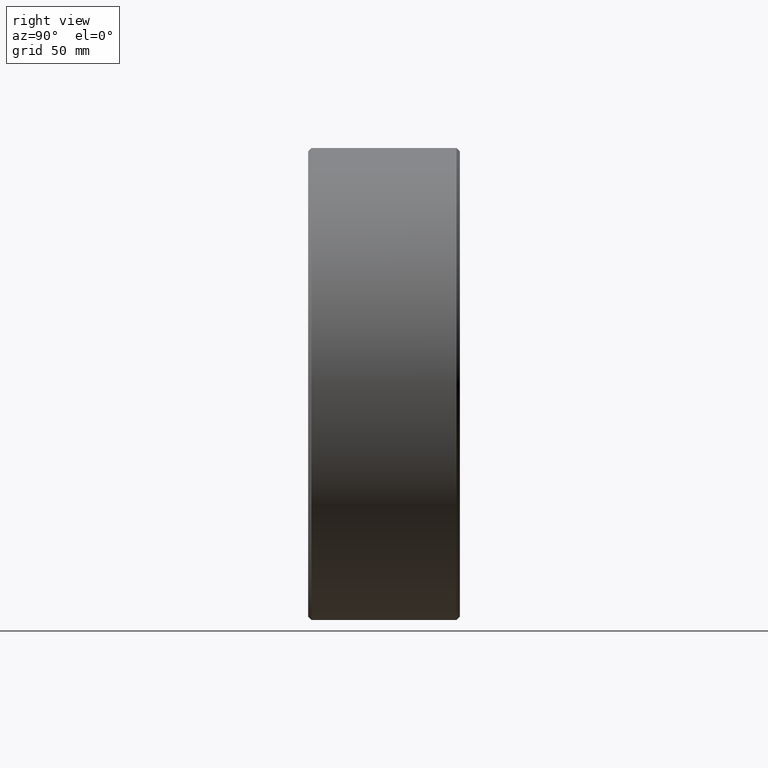
[diagram: clean part render]
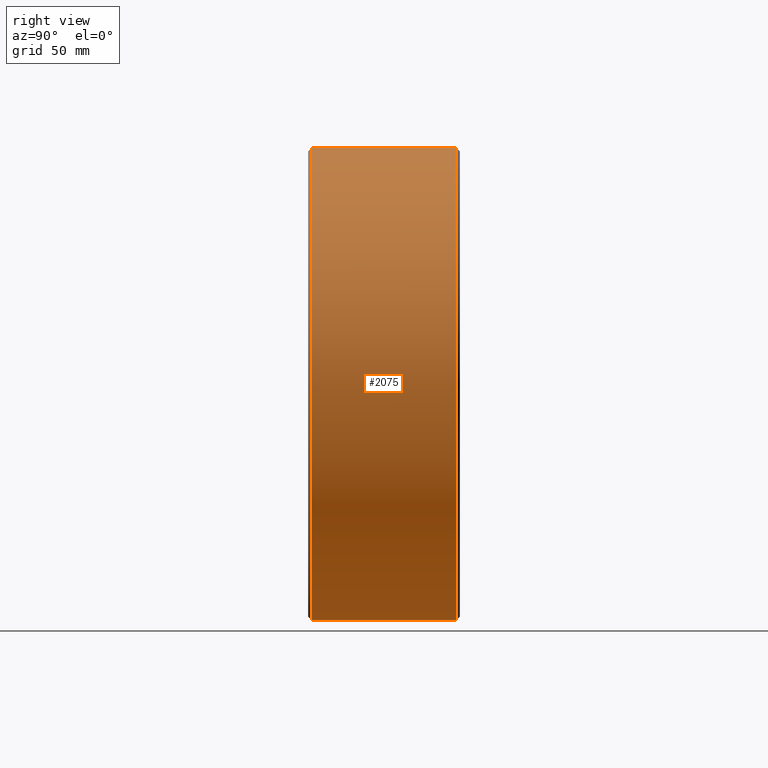
[diagram: same view with one face highlighted and labeled with its STEP entity id]
A machine part, right view. The second image highlights one B-rep face of the part: STEP entity #2075.
In plain terms, the highlighted cylindrical surface (bore or boss wall) has radius 140 mm, axis along (0, -1, 0).
Its self-contained STEP definition (entity closure, byte-faithful):
#45=FACE_BOUND('',#296,.T.);
#123=CYLINDRICAL_SURFACE('',#2402,140.);
#194=FACE_OUTER_BOUND('',#295,.T.);
#295=EDGE_LOOP('',(#1755,#1756,#1757,#1758,#1759,#1760));
#296=EDGE_LOOP('',(#1761,#1762,#1763,#1764));
#448=LINE('',#3732,#547);
#449=LINE('',#3735,#548);
#450=LINE('',#3739,#549);
#547=VECTOR('',#3073,140.);
#548=VECTOR('',#3074,1000.);
#549=VECTOR('',#3077,1000.);
#748=CIRCLE('',#2353,140.);
#751=CIRCLE('',#2356,140.);
#752=CIRCLE('',#2358,140.);
#753=CIRCLE('',#2359,140.);
#788=CIRCLE('',#2403,140.);
#789=CIRCLE('',#2404,140.);
#962=VERTEX_POINT('',#3632);
#963=VERTEX_POINT('',#3633);
#966=VERTEX_POINT('',#3642);
#967=VERTEX_POINT('',#3643);
#1002=VERTEX_POINT('',#3733);
#1003=VERTEX_POINT('',#3734);
#1004=VERTEX_POINT('',#3736);
#1005=VERTEX_POINT('',#3738);
#1254=EDGE_CURVE('',#962,#963,#748,.T.);
#1258=EDGE_CURVE('',#963,#962,#751,.T.);
#1259=EDGE_CURVE('',#966,#967,#752,.T.);
#1260=EDGE_CURVE('',#967,#966,#753,.T.);
#1304=EDGE_CURVE('',#962,#967,#448,.T.);
#1305=EDGE_CURVE('',#1002,#1003,#449,.T.);
#1306=EDGE_CURVE('',#1003,#1004,#788,.T.);
#1307=EDGE_CURVE('',#1004,#1005,#450,.T.);
#1308=EDGE_CURVE('',#1002,#1005,#789,.T.);
#1755=ORIENTED_EDGE('',*,*,#1254,.F.);
#1756=ORIENTED_EDGE('',*,*,#1304,.T.);
#1757=ORIENTED_EDGE('',*,*,#1260,.T.);
#1758=ORIENTED_EDGE('',*,*,#1259,.T.);
#1759=ORIENTED_EDGE('',*,*,#1304,.F.);
#1760=ORIENTED_EDGE('',*,*,#1258,.F.);
#1761=ORIENTED_EDGE('',*,*,#1305,.T.);
#1762=ORIENTED_EDGE('',*,*,#1306,.T.);
#1763=ORIENTED_EDGE('',*,*,#1307,.T.);
#1764=ORIENTED_EDGE('',*,*,#1308,.F.);
#2075=ADVANCED_FACE('',(#194,#45),#123,.T.);
#2353=AXIS2_PLACEMENT_3D('',#3634,#2963,#2964);
#2356=AXIS2_PLACEMENT_3D('',#3640,#2970,#2971);
#2358=AXIS2_PLACEMENT_3D('',#3644,#2974,#2975);
#2359=AXIS2_PLACEMENT_3D('',#3645,#2976,#2977);
#2402=AXIS2_PLACEMENT_3D('',#3731,#3071,#3072);
#2403=AXIS2_PLACEMENT_3D('',#3737,#3075,#3076);
#2404=AXIS2_PLACEMENT_3D('',#3740,#3078,#3079);
#2963=DIRECTION('center_axis',(0.,-1.,0.));
#2964=DIRECTION('ref_axis',(0.,0.,-1.));
#2970=DIRECTION('center_axis',(0.,-1.,0.));
#2971=DIRECTION('ref_axis',(0.,0.,-1.));
#2974=DIRECTION('center_axis',(0.,-1.,0.));
#2975=DIRECTION('ref_axis',(0.,0.,-1.));
#2976=DIRECTION('center_axis',(0.,-1.,0.));
#2977=DIRECTION('ref_axis',(0.,0.,-1.));
#3071=DIRECTION('center_axis',(0.,-1.,0.));
#3072=DIRECTION('ref_axis',(0.,0.,-1.));
#3073=DIRECTION('',(0.,1.,0.));
#3074=DIRECTION('',(0.,1.,0.));
#3075=DIRECTION('center_axis',(0.,1.,0.));
#3076=DIRECTION('ref_axis',(0.,0.,-1.));
#3077=DIRECTION('',(0.,-1.,0.));
#3078=DIRECTION('center_axis',(0.,1.,0.));
#3079=DIRECTION('ref_axis',(0.,0.,-1.));
#3632=CARTESIAN_POINT('',(1.25526296912604E-15,-19.,140.));
#3633=CARTESIAN_POINT('',(-3.30348474069999E-14,-19.,-140.));
#3634=CARTESIAN_POINT('Origin',(-1.58897922189369E-14,-19.,0.));
#3640=CARTESIAN_POINT('Origin',(-1.58897922189369E-14,-19.,0.));
#3642=CARTESIAN_POINT('',(-1.58897922189369E-14,67.,-140.));
#3643=CARTESIAN_POINT('',(-3.30348474069999E-14,67.,140.));
#3644=CARTESIAN_POINT('Origin',(-1.58897922189369E-14,67.,0.));
#3645=CARTESIAN_POINT('Origin',(-1.58897922189369E-14,67.,0.));
#3731=CARTESIAN_POINT('Origin',(-1.58897922189369E-14,-19.,0.));
#3732=CARTESIAN_POINT('',(-3.30348474069999E-14,-19.,140.));
#3733=CARTESIAN_POINT('',(-139.886854268439,0.,5.6274330631644));
#3734=CARTESIAN_POINT('',(-139.886854268439,48.,5.62743306316425));
#3735=CARTESIAN_POINT('',(-139.886854268439,-19.,5.62743306316425));
#3736=CARTESIAN_POINT('',(-130.081883534091,48.,51.7561936025356));
#3737=CARTESIAN_POINT('Origin',(-1.58897922189369E-14,48.,0.));
#3738=CARTESIAN_POINT('',(-130.081883534091,0.,51.7561936025355));
#3739=CARTESIAN_POINT('',(-130.081883534091,-19.,51.7561936025356));
#3740=CARTESIAN_POINT('Origin',(-1.58897922189369E-14,0.,0.));